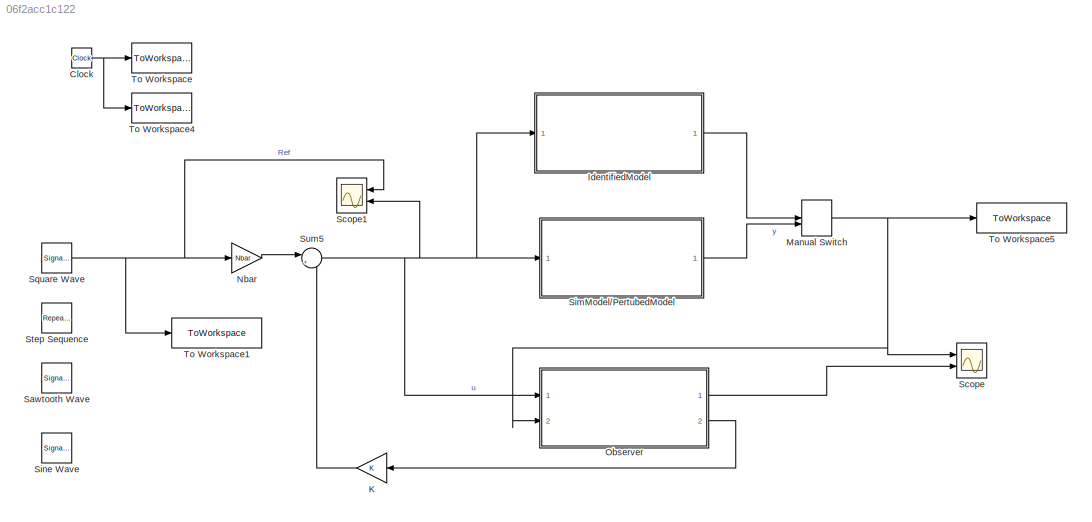
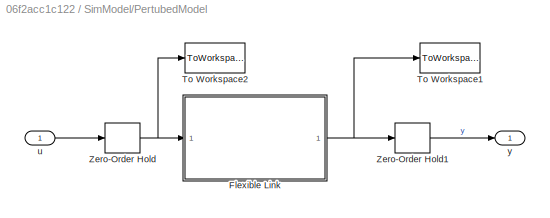
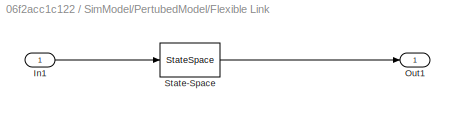
MODEL slx_06f2acc1c122
KIND model
CONFIG AbsTol = auto
CONFIG EnableMultiTasking = on
CONFIG FixedStep = auto
CONFIG MaxStep = auto
CONFIG MinStep = auto
CONFIG RelTol = 1e-6
CONFIG SampleTimeConstraint = Unconstrained
CONFIG Solver = ode45
CONFIG SolverName = ode45
CONFIG StartTime = 0.0
CONFIG StopTime = 500
BLOCK [Clock] Clock
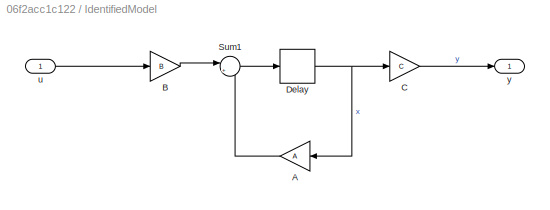
BLOCK [SubSystem] IdentifiedModel
  Ports = [1, 1]
  RequestExecContextInheritance = off
BLOCK [Gain] IdentifiedModel/A 
  Gain = A
  Multiplication = Matrix(K*u)
BLOCK [Gain] IdentifiedModel/B
  Gain = B
  Multiplication = Matrix(K*u)
BLOCK [Gain] IdentifiedModel/C
  Gain = C
  Multiplication = Matrix(K*u)
BLOCK [Delay] IdentifiedModel/Delay
  DelayLength = 1
  InitialCondition = 0
  InputPortMap = u0
  Ports = [1, 1]
  SampleTime = Ts
BLOCK [Sum] IdentifiedModel/Sum1
  Inputs = |++
  Ports = [2, 1]
BLOCK [Inport] IdentifiedModel/u
BLOCK [Outport] IdentifiedModel/y
BLOCK [Gain] K
  Gain = K
  Multiplication = Matrix(K*u)
BLOCK [ManualSwitch] Manual Switch
  CurrentSetting = 0
BLOCK [Gain] Nbar
  Gain = Nbar
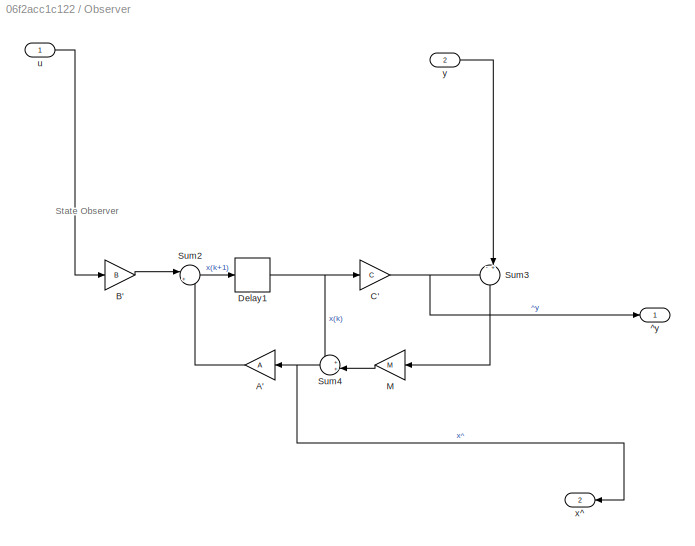
BLOCK [SubSystem] Observer
  Description = Observer
  Ports = [2, 2]
  RequestExecContextInheritance = off
  Tag = Observer
BLOCK [Gain] Observer/A'
  Gain = A
  Multiplication = Matrix(K*u)
BLOCK [Gain] Observer/B'
  Gain = B
  Multiplication = Matrix(K*u)
BLOCK [Gain] Observer/C'
  Gain = C
  Multiplication = Matrix(K*u)
BLOCK [Delay] Observer/Delay1
  DelayLength = 1
  InitialCondition = 0
  InputPortMap = u0
  Ports = [1, 1]
  SampleTime = Ts
BLOCK [Gain] Observer/M
  Gain = M
  Multiplication = Matrix(K*u)
BLOCK [Sum] Observer/Sum2
  Inputs = |++
  Ports = [2, 1]
BLOCK [Sum] Observer/Sum3
  Inputs = -+|
  Ports = [2, 1]
BLOCK [Sum] Observer/Sum4
  Inputs = ++|
  Ports = [2, 1]
BLOCK [Outport] Observer/^y
BLOCK [Inport] Observer/u
BLOCK [Outport] Observer/x^
  Port = 2
BLOCK [Inport] Observer/y
  Port = 2
BLOCK [SignalGenerator] Sawtooth Wave
  Amplitude = 4
  Frequency = 1/50
  Ports = [0, 1]
  WaveForm = square
BLOCK [Scope] Scope
  Floating = off
  NumInputPorts = 2
  Ports = [2]
  ScopeSpecificationString = Simulink.scopes.TimeScopeBlockCfg('CurrentConfiguration', extmgr.ConfigurationSet(extmgr.Configuration('Core','General UI',true),extmgr.Configuration('Core','Source UI',true),extmgr.Configuration('Sources','WiredSimulink',true,'DataLoggingVariableName','ScopeData1'),extmgr.Configuration('Visuals','Time Domain',true,'SerializedDisplays',{struct('MinYLimReal','-5.18069','MaxYLimReal','5.18012','YLab...<+1525ch>
BLOCK [Scope] Scope1
  Floating = off
  NumInputPorts = 2
  Ports = [2]
  ScopeSpecificationString = Simulink.scopes.TimeScopeBlockCfg('CurrentConfiguration', extmgr.ConfigurationSet(extmgr.Configuration('Core','General UI',true),extmgr.Configuration('Core','Source UI',true),extmgr.Configuration('Sources','WiredSimulink',true),extmgr.Configuration('Visuals','Time Domain',true,'SerializedDisplays',{struct('MinYLimReal','-5.00000','MaxYLimReal','5.00000','YLabelReal','','MinYLimMag','0.00000','MaxY...<+1541ch>
BLOCK [SubSystem] SimModel//PertubedModel
  Ports = [1, 1]
  RequestExecContextInheritance = off
BLOCK [SubSystem] SimModel//PertubedModel/Flexible Link
  Ports = [1, 1]
  RequestExecContextInheritance = off
BLOCK [Inport] SimModel//PertubedModel/Flexible Link/In1
BLOCK [Outport] SimModel//PertubedModel/Flexible Link/Out1
BLOCK [StateSpace] SimModel//PertubedModel/Flexible Link/State-Space
  A = Atrue
  B = Btrue
  C = Ctrue
  D = Dtrue
  InitialCondition = 0
  Ports = [1, 1]
BLOCK [ToWorkspace] SimModel//PertubedModel/To Workspace1
  FixptAsFi = on
  MaxDataPoints = inf
  Ports = [1]
  SampleTime = -1
  VariableName = y
BLOCK [ToWorkspace] SimModel//PertubedModel/To Workspace2
  FixptAsFi = on
  MaxDataPoints = inf
  Ports = [1]
  SampleTime = Ts
  VariableName = us
BLOCK [ZeroOrderHold] SimModel//PertubedModel/Zero-Order Hold
  SampleTime = Ts
BLOCK [ZeroOrderHold] SimModel//PertubedModel/Zero-Order Hold1
  SampleTime = Ts
BLOCK [Inport] SimModel//PertubedModel/u
BLOCK [Outport] SimModel//PertubedModel/y
BLOCK [SignalGenerator] Sine Wave
  Amplitude = 4
  Frequency = 1/50
  Ports = [0, 1]
BLOCK [SignalGenerator] Square Wave
  Amplitude = 4
  Frequency = 1/50
  Ports = [0, 1]
  WaveForm = square
BLOCK [Reference] Step Sequence  REF=simulink/Sources/Repeating
Sequence
Stair
  Ports = [0, 1]
  SourceBlock = simulink/Sources/Repeating\nSequence\nStair
  SourceProductBaseCode = SL
  SourceType = Repeating Sequence Stair
BLOCK [Sum] Sum5
  Inputs = |+-
  Ports = [2, 1]
BLOCK [ToWorkspace] To Workspace
  FixptAsFi = on
  MaxDataPoints = inf
  Ports = [1]
  SampleTime = -1
  VariableName = t
BLOCK [ToWorkspace] To Workspace1
  FixptAsFi = on
  MaxDataPoints = inf
  Ports = [1]
  SampleTime = Ts
  SaveFormat = Structure With Time
  VariableName = yin
BLOCK [ToWorkspace] To Workspace4
  FixptAsFi = on
  MaxDataPoints = inf
  Ports = [1]
  SampleTime = Ts
  VariableName = ts
BLOCK [ToWorkspace] To Workspace5
  FixptAsFi = on
  MaxDataPoints = inf
  Ports = [1]
  SampleTime = Ts
  SaveFormat = Structure With Time
  VariableName = yout
ANNOTATION Observer: State Observer
NET Clock:1 -> To Workspace4:1, To Workspace:1
LINE IdentifiedModel/A :1 -> IdentifiedModel/Sum1:2
LINE IdentifiedModel/B:1 -> IdentifiedModel/Sum1:1
LINE IdentifiedModel/C:1 -> IdentifiedModel/y:1
NET IdentifiedModel/Delay:1 -> IdentifiedModel/A :1, IdentifiedModel/C:1
LINE IdentifiedModel/Sum1:1 -> IdentifiedModel/Delay:1
LINE IdentifiedModel/u:1 -> IdentifiedModel/B:1
LINE IdentifiedModel:1 -> Manual Switch:1
LINE K:1 -> Sum5:2
NET Manual Switch:1 -> Observer:2, Scope:1, To Workspace5:1
LINE Nbar:1 -> Sum5:1
LINE Observer/A':1 -> Observer/Sum2:2
LINE Observer/B':1 -> Observer/Sum2:1
NET Observer/C':1 -> Observer/Sum3:1, Observer/^y:1
NET Observer/Delay1:1 -> Observer/C':1, Observer/Sum4:1
LINE Observer/M:1 -> Observer/Sum4:2
LINE Observer/Sum2:1 -> Observer/Delay1:1
LINE Observer/Sum3:1 -> Observer/M:1
NET Observer/Sum4:1 -> Observer/A':1, Observer/x^:1
LINE Observer/u:1 -> Observer/B':1
LINE Observer/y:1 -> Observer/Sum3:2
LINE Observer:1 -> Scope:2
LINE Observer:2 -> K:1
LINE SimModel//PertubedModel/Flexible Link/In1:1 -> SimModel//PertubedModel/Flexible Link/State-Space:1
LINE SimModel//PertubedModel/Flexible Link/State-Space:1 -> SimModel//PertubedModel/Flexible Link/Out1:1
NET SimModel//PertubedModel/Flexible Link:1 -> SimModel//PertubedModel/To Workspace1:1, SimModel//PertubedModel/Zero-Order Hold1:1
LINE SimModel//PertubedModel/Zero-Order Hold1:1 -> SimModel//PertubedModel/y:1
NET SimModel//PertubedModel/Zero-Order Hold:1 -> SimModel//PertubedModel/Flexible Link:1, SimModel//PertubedModel/To Workspace2:1
LINE SimModel//PertubedModel/u:1 -> SimModel//PertubedModel/Zero-Order Hold:1
LINE SimModel//PertubedModel:1 -> Manual Switch:2
NET Square Wave:1 -> Nbar:1, Scope1:1, To Workspace1:1
NET Sum5:1 -> IdentifiedModel:1, Observer:1, Scope1:2, SimModel//PertubedModel:1
note: NET lines group one-source signal fan-out (src -> all destinations, sorted); 1:1 wires keep LINE
